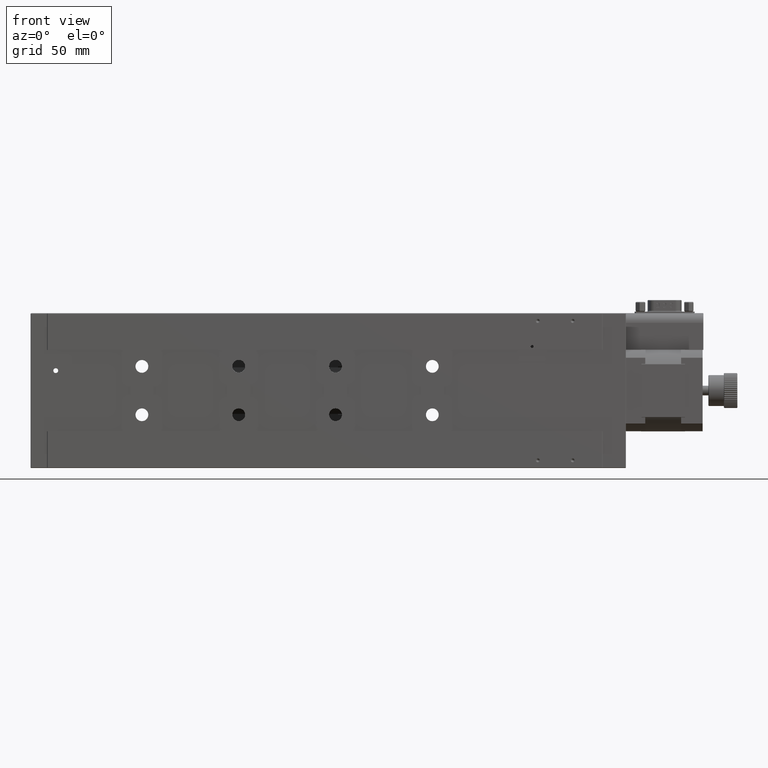
[diagram: clean part render]
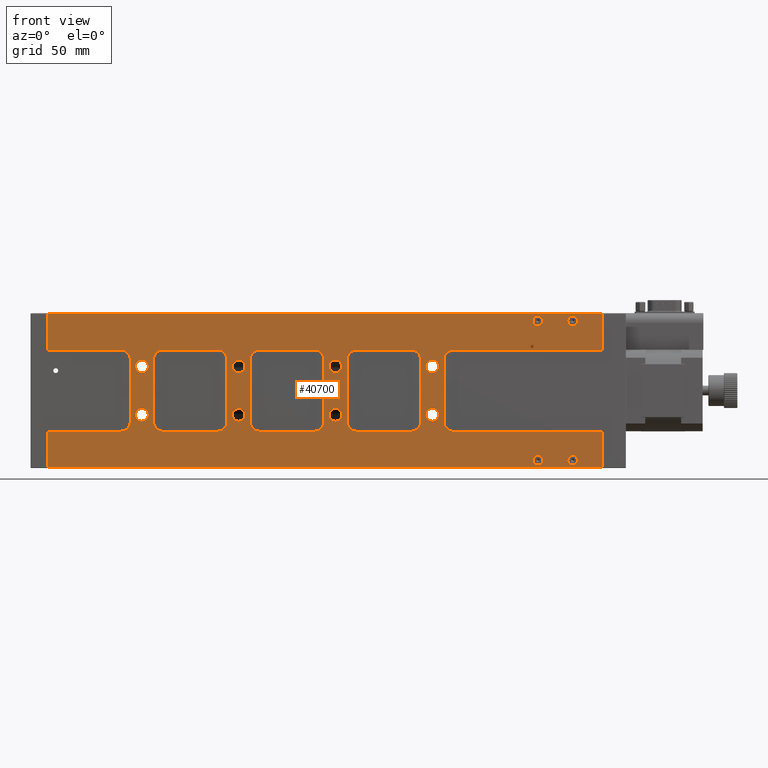
[diagram: same view with one face highlighted and labeled with its STEP entity id]
A machine part, front view. The second image highlights one B-rep face of the part: STEP entity #40700.
In plain terms, the highlighted planar face has unit normal (0, -1, 0).
Its self-contained STEP definition (entity closure, byte-faithful):
#84 = LINE ( 'NONE', #96950, #62316 ) ;
#296 = AXIS2_PLACEMENT_3D ( 'NONE', #114979, #136124, #92404 ) ;
#561 = DIRECTION ( 'NONE',  ( 0.0000000000000000000, -0.0000000000000000000, -1.000000000000000000 ) ) ;
#570 = CARTESIAN_POINT ( 'NONE',  ( 57.50000000000005000, 2.465190328815661900E-029, -30.79999999999999700 ) ) ;
#587 = DIRECTION ( 'NONE',  ( -0.0000000000000000000, 1.000000000000000000, -0.0000000000000000000 ) ) ;
#597 = VERTEX_POINT ( 'NONE', #49420 ) ;
#901 = DIRECTION ( 'NONE',  ( -0.0000000000000000000, -1.000000000000000000, -0.0000000000000000000 ) ) ;
#1114 = CARTESIAN_POINT ( 'NONE',  ( 259.0000000000000000, 2.465190328815661900E-029, -17.29999999999999700 ) ) ;
#1131 = CIRCLE ( 'NONE', #32607, 2.500000000000002200 ) ;
#1133 = CARTESIAN_POINT ( 'NONE',  ( 262.0000000000000000, 2.503708927703406600E-029, -1.500000000000015100 ) ) ;
#1218 = ORIENTED_EDGE ( 'NONE', *, *, #127760, .F. ) ;
#1389 = DIRECTION ( 'NONE',  ( 0.0000000000000000000, 0.0000000000000000000, -1.000000000000000000 ) ) ;
#1406 = CARTESIAN_POINT ( 'NONE',  ( 262.0000000000000000, 2.503708927703406600E-029, -4.000000000000003600 ) ) ;
#1866 = VERTEX_POINT ( 'NONE', #77046 ) ;
#1970 = EDGE_CURVE ( 'NONE', #51352, #121429, #70528, .T. ) ;
#2080 = VERTEX_POINT ( 'NONE', #48911 ) ;
#2211 = DIRECTION ( 'NONE',  ( 1.000000000000000000, 0.0000000000000000000, 0.0000000000000000000 ) ) ;
#2237 = VECTOR ( 'NONE', #115083, 1000.000000000000000 ) ;
#2761 = VERTEX_POINT ( 'NONE', #18773 ) ;
#3974 = DIRECTION ( 'NONE',  ( 0.0000000000000000000, -1.000000000000000000, 0.0000000000000000000 ) ) ;
#4167 = FACE_OUTER_BOUND ( 'NONE', #42042, .T. ) ;
#4202 = ORIENTED_EDGE ( 'NONE', *, *, #5622, .T. ) ;
#4478 = CIRCLE ( 'NONE', #66826, 3.299999999999997200 ) ;
#4493 = AXIS2_PLACEMENT_3D ( 'NONE', #136596, #25760, #114023 ) ;
#4707 = VERTEX_POINT ( 'NONE', #22942 ) ;
#4799 = CARTESIAN_POINT ( 'NONE',  ( 101.5000000000000600, 2.465190328815661900E-029, -23.99999999999999600 ) ) ;
#5057 = CIRCLE ( 'NONE', #89733, 4.999999999999997300 ) ;
#5211 = CIRCLE ( 'NONE', #73186, 2.500000000000002200 ) ;
#5622 = EDGE_CURVE ( 'NONE', #135397, #4707, #134677, .T. ) ;
#5801 = EDGE_LOOP ( 'NONE', ( #53796, #138934, #56399, #54696, #56809, #70394, #1218, #15175 ) ) ;
#6030 = AXIS2_PLACEMENT_3D ( 'NONE', #128756, #141249, #119610 ) ;
#6052 = ORIENTED_EDGE ( 'NONE', *, *, #15484, .F. ) ;
#6167 = LINE ( 'NONE', #29450, #113165 ) ;
#6775 = ORIENTED_EDGE ( 'NONE', *, *, #141233, .F. ) ;
#7283 = VERTEX_POINT ( 'NONE', #136190 ) ;
#7847 = CARTESIAN_POINT ( 'NONE',  ( 118.5000000000000600, 2.465190328815661900E-029, -56.00000000000002100 ) ) ;
#8048 = CARTESIAN_POINT ( 'NONE',  ( 107.5000000000000600, 2.465190328815661900E-029, -52.50000000000000700 ) ) ;
#8451 = VERTEX_POINT ( 'NONE', #44719 ) ;
#8688 = CARTESIAN_POINT ( 'NONE',  ( 295.2000000000000500, 2.465190328815661900E-029, -79.69999999999994600 ) ) ;
#9483 = CARTESIAN_POINT ( 'NONE',  ( 68.50000000000005700, 2.465190328815661900E-029, -19.00000000000000400 ) ) ;
#9649 = ORIENTED_EDGE ( 'NONE', *, *, #29708, .T. ) ;
#10480 = EDGE_CURVE ( 'NONE', #79643, #37473, #96171, .T. ) ;
#11616 = CARTESIAN_POINT ( 'NONE',  ( 213.5000000000000900, 2.465190328815661900E-029, -56.00000000000001400 ) ) ;
#11747 = CIRCLE ( 'NONE', #4493, 5.000000000000000900 ) ;
#11820 = CIRCLE ( 'NONE', #106686, 3.299999999999997200 ) ;
#11949 = AXIS2_PLACEMENT_3D ( 'NONE', #78133, #132955, #34606 ) ;
#12019 = DIRECTION ( 'NONE',  ( -1.665334536937735800E-014, 0.0000000000000000000, -1.000000000000000000 ) ) ;
#12058 = CIRCLE ( 'NONE', #96217, 3.299999999999997200 ) ;
#12349 = VECTOR ( 'NONE', #62794, 1000.000000000000000 ) ;
#12355 = EDGE_CURVE ( 'NONE', #1866, #130557, #134238, .T. ) ;
#12398 = AXIS2_PLACEMENT_3D ( 'NONE', #78737, #13514, #101375 ) ;
#12891 = FACE_BOUND ( 'NONE', #5801, .T. ) ;
#13514 = DIRECTION ( 'NONE',  ( -0.0000000000000000000, 1.000000000000000000, -0.0000000000000000000 ) ) ;
#13687 = CARTESIAN_POINT ( 'NONE',  ( 118.5000000000000600, 2.465190328815661900E-029, -61.00000000000002100 ) ) ;
#13686 = CARTESIAN_POINT ( 'NONE',  ( 207.5000000000000900, 2.465190328815661900E-029, -30.79999999999999700 ) ) ;
#13862 = DIRECTION ( 'NONE',  ( -1.000000000000000000, 0.0000000000000000000, 0.0000000000000000000 ) ) ;
#13868 = EDGE_CURVE ( 'NONE', #122162, #78743, #32973, .T. ) ;
#14012 = CARTESIAN_POINT ( 'NONE',  ( 163.5000000000000600, 2.465190328815661900E-029, -18.99999999999998200 ) ) ;
#14272 = EDGE_CURVE ( 'NONE', #32582, #65063, #5057, .T. ) ;
#14584 = CARTESIAN_POINT ( 'NONE',  ( 57.50000000000005000, 2.465190328815661900E-029, -24.20000000000000300 ) ) ;
#14671 = EDGE_CURVE ( 'NONE', #105512, #79790, #38374, .T. ) ;
#14877 = DIRECTION ( 'NONE',  ( 0.0000000000000000000, 0.0000000000000000000, 1.000000000000000000 ) ) ;
#15175 = ORIENTED_EDGE ( 'NONE', *, *, #142912, .T. ) ;
#15390 = EDGE_CURVE ( 'NONE', #26297, #118069, #62347, .T. ) ;
#15484 = EDGE_CURVE ( 'NONE', #32582, #131623, #44890, .T. ) ;
#16000 = LINE ( 'NONE', #49950, #76452 ) ;
#16180 = VERTEX_POINT ( 'NONE', #31472 ) ;
#16216 = CARTESIAN_POINT ( 'NONE',  ( 96.50000000000005700, 2.465190328815661900E-029, -61.00000000000002100 ) ) ;
#16485 = CARTESIAN_POINT ( 'NONE',  ( 63.50000000000005700, 2.465190328815661900E-029, -19.00000000000000400 ) ) ;
#16497 = LINE ( 'NONE', #99028, #140756 ) ;
#16971 = CARTESIAN_POINT ( 'NONE',  ( 168.5000000000000600, 2.465190328815661900E-029, -61.00000000000002100 ) ) ;
#17053 = VECTOR ( 'NONE', #90548, 1000.000000000000000 ) ;
#18243 = ORIENTED_EDGE ( 'NONE', *, *, #48437, .T. ) ;
#18369 = CARTESIAN_POINT ( 'NONE',  ( 168.5000000000000600, 2.465190328815661900E-029, -56.00000000000002100 ) ) ;
#18593 = AXIS2_PLACEMENT_3D ( 'NONE', #56600, #112494, #58048 ) ;
#18663 = DIRECTION ( 'NONE',  ( -0.0000000000000000000, 1.000000000000000000, -0.0000000000000000000 ) ) ;
#18773 = CARTESIAN_POINT ( 'NONE',  ( 157.5000000000000600, 2.465190328815661900E-029, -30.79999999999999700 ) ) ;
#18905 = DIRECTION ( 'NONE',  ( 0.0000000000000000000, 0.0000000000000000000, -1.000000000000000000 ) ) ;
#18970 = VERTEX_POINT ( 'NONE', #113538 ) ;
#19242 = EDGE_LOOP ( 'NONE', ( #113642, #51136 ) ) ;
#19856 = DIRECTION ( 'NONE',  ( 1.000000000000000000, 0.0000000000000000000, 0.0000000000000000000 ) ) ;
#20067 = VERTEX_POINT ( 'NONE', #92656 ) ;
#20417 = EDGE_CURVE ( 'NONE', #54818, #59353, #5211, .T. ) ;
#20668 = DIRECTION ( 'NONE',  ( -8.260587980841931400E-017, 0.0000000000000000000, 1.000000000000000000 ) ) ;
#20676 = LINE ( 'NONE', #61538, #124161 ) ;
#21606 = ORIENTED_EDGE ( 'NONE', *, *, #10480, .T. ) ;
#22066 = CARTESIAN_POINT ( 'NONE',  ( 218.5000000000000600, 2.465190328815661900E-029, -23.99999999999996800 ) ) ;
#22235 = CARTESIAN_POINT ( 'NONE',  ( 201.5000000000000600, 2.465190328815661900E-029, -56.00000000000002100 ) ) ;
#22796 = EDGE_CURVE ( 'NONE', #130638, #81582, #64917, .T. ) ;
#22942 = CARTESIAN_POINT ( 'NONE',  ( 157.5000000000000600, 2.465190328815661900E-029, -49.20000000000001000 ) ) ;
#23245 = DIRECTION ( 'NONE',  ( 1.000000000000000000, 0.0000000000000000000, -0.0000000000000000000 ) ) ;
#23598 = DIRECTION ( 'NONE',  ( 0.0000000000000000000, 0.0000000000000000000, -1.000000000000000000 ) ) ;
#23636 = ORIENTED_EDGE ( 'NONE', *, *, #46628, .T. ) ;
#23777 = DIRECTION ( 'NONE',  ( 0.0000000000000000000, 0.0000000000000000000, -1.000000000000000000 ) ) ;
#23821 = CARTESIAN_POINT ( 'NONE',  ( 107.5000000000000600, 2.465190328815661900E-029, -55.80000000000000400 ) ) ;
#23989 = AXIS2_PLACEMENT_3D ( 'NONE', #80199, #135494, #24147 ) ;
#24147 = DIRECTION ( 'NONE',  ( 0.0000000000000000000, 0.0000000000000000000, -1.000000000000000000 ) ) ;
#24508 = CARTESIAN_POINT ( 'NONE',  ( 51.50000000000004300, 2.465190328815661900E-029, -56.00000000000002100 ) ) ;
#24749 = DIRECTION ( 'NONE',  ( -0.0000000000000000000, 1.000000000000000000, -0.0000000000000000000 ) ) ;
#25760 = DIRECTION ( 'NONE',  ( -0.0000000000000000000, 1.000000000000000000, -0.0000000000000000000 ) ) ;
#25775 = CARTESIAN_POINT ( 'NONE',  ( 213.5000000000000600, 2.465190328815661900E-029, -23.99999999999996800 ) ) ;
#25892 = CARTESIAN_POINT ( 'NONE',  ( 295.2000000000000500, 2.465190328815661900E-029, -18.99999999999994700 ) ) ;
#26026 = CARTESIAN_POINT ( 'NONE',  ( 63.50000000000005700, 2.465190328815661900E-029, -56.00000000000002100 ) ) ;
#26297 = VERTEX_POINT ( 'NONE', #54406 ) ;
#26427 = EDGE_CURVE ( 'NONE', #4707, #135397, #12058, .T. ) ;
#26466 = CARTESIAN_POINT ( 'NONE',  ( 207.5000000000000900, 2.465190328815661900E-029, -52.50000000000000700 ) ) ;
#26540 = DIRECTION ( 'NONE',  ( -0.0000000000000000000, 1.000000000000000000, -0.0000000000000000000 ) ) ;
#26579 = CARTESIAN_POINT ( 'NONE',  ( 57.50000000000005000, 2.465190328815661900E-029, -55.80000000000000400 ) ) ;
#26808 = CARTESIAN_POINT ( 'NONE',  ( 113.5000000000000400, 2.465190328815661900E-029, -18.99999999999998900 ) ) ;
#26948 = EDGE_CURVE ( 'NONE', #8451, #60736, #104981, .T. ) ;
#26986 = CARTESIAN_POINT ( 'NONE',  ( 218.5000000000000600, 2.465190328815661900E-029, -61.00000000000002100 ) ) ;
#27320 = AXIS2_PLACEMENT_3D ( 'NONE', #84875, #18663, #85353 ) ;
#27321 = CARTESIAN_POINT ( 'NONE',  ( 8.800000000000086000, 2.465190328815661900E-029, -80.00000000000000000 ) ) ;
#27335 = DIRECTION ( 'NONE',  ( 0.0000000000000000000, 0.0000000000000000000, -1.000000000000000000 ) ) ;
#27779 = DIRECTION ( 'NONE',  ( -1.000000000000000000, -0.0000000000000000000, -2.420544385083917700E-016 ) ) ;
#28387 = AXIS2_PLACEMENT_3D ( 'NONE', #111431, #133064, #143217 ) ;
#28466 = VERTEX_POINT ( 'NONE', #1133 ) ;
#29385 = CARTESIAN_POINT ( 'NONE',  ( 46.50000000000004300, 2.465190328815661900E-029, -56.00000000000002100 ) ) ;
#29450 = CARTESIAN_POINT ( 'NONE',  ( 295.2000000000000500, 2.465190328815661900E-029, 0.0000000000000000000 ) ) ;
#29708 = EDGE_CURVE ( 'NONE', #105039, #2080, #125258, .T. ) ;
#29945 = EDGE_LOOP ( 'NONE', ( #48165, #23636 ) ) ;
#30076 = FACE_BOUND ( 'NONE', #109184, .T. ) ;
#30098 = EDGE_CURVE ( 'NONE', #7283, #60736, #43799, .T. ) ;
#30124 = ORIENTED_EDGE ( 'NONE', *, *, #42428, .T. ) ;
#30464 = CARTESIAN_POINT ( 'NONE',  ( 63.50000000000005700, 2.465190328815661900E-029, -24.00000000000000400 ) ) ;
#30717 = CARTESIAN_POINT ( 'NONE',  ( 8.500000000000063900, 2.465190328815661900E-029, -61.00000000000002100 ) ) ;
#31014 = VERTEX_POINT ( 'NONE', #4799 ) ;
#31386 = CARTESIAN_POINT ( 'NONE',  ( 262.0000000000000000, 2.503708927703406600E-029, -4.000000000000003600 ) ) ;
#31469 = ORIENTED_EDGE ( 'NONE', *, *, #22796, .T. ) ;
#31472 = CARTESIAN_POINT ( 'NONE',  ( 207.5000000000000900, 2.465190328815661900E-029, -24.20000000000000300 ) ) ;
#31475 = LINE ( 'NONE', #140900, #109102 ) ;
#31562 = AXIS2_PLACEMENT_3D ( 'NONE', #93216, #26540, #113859 ) ;
#31790 = CIRCLE ( 'NONE', #105145, 2.499999999999988500 ) ;
#31849 = CIRCLE ( 'NONE', #11949, 5.000000000000000900 ) ;
#31854 = FACE_BOUND ( 'NONE', #111481, .T. ) ;
#32228 = EDGE_CURVE ( 'NONE', #68909, #104421, #6167, .T. ) ;
#32345 = CARTESIAN_POINT ( 'NONE',  ( 107.5000000000000600, 2.465190328815661900E-029, -52.50000000000000700 ) ) ;
#32582 = VERTEX_POINT ( 'NONE', #24508 ) ;
#32607 = AXIS2_PLACEMENT_3D ( 'NONE', #112177, #34957, #80402 ) ;
#32973 = CIRCLE ( 'NONE', #125455, 4.999999999999997300 ) ;
#33428 = ORIENTED_EDGE ( 'NONE', *, *, #122243, .T. ) ;
#33846 = DIRECTION ( 'NONE',  ( 0.0000000000000000000, -1.000000000000000000, 0.0000000000000000000 ) ) ;
#34152 = CARTESIAN_POINT ( 'NONE',  ( 107.5000000000000600, 2.465190328815661900E-029, -49.20000000000001000 ) ) ;
#34606 = DIRECTION ( 'NONE',  ( 0.0000000000000000000, 0.0000000000000000000, -1.000000000000000000 ) ) ;
#34817 = AXIS2_PLACEMENT_3D ( 'NONE', #7847, #85132, #18905 ) ;
#34957 = DIRECTION ( 'NONE',  ( -0.0000000000000000000, -1.000000000000000000, -0.0000000000000000000 ) ) ;
#35570 = EDGE_CURVE ( 'NONE', #61717, #20067, #113654, .T. ) ;
#35836 = CARTESIAN_POINT ( 'NONE',  ( 207.5000000000000900, 2.465190328815661900E-029, -49.20000000000001000 ) ) ;
#35963 = VERTEX_POINT ( 'NONE', #30464 ) ;
#36358 = ORIENTED_EDGE ( 'NONE', *, *, #79208, .T. ) ;
#36893 = AXIS2_PLACEMENT_3D ( 'NONE', #49006, #70260, #58271 ) ;
#37325 = EDGE_CURVE ( 'NONE', #130803, #143166, #132080, .T. ) ;
#37473 = VERTEX_POINT ( 'NONE', #23821 ) ;
#37981 = EDGE_LOOP ( 'NONE', ( #123129, #4202 ) ) ;
#38207 = VERTEX_POINT ( 'NONE', #83097 ) ;
#38374 = LINE ( 'NONE', #46634, #83313 ) ;
#38400 = DIRECTION ( 'NONE',  ( -1.000000000000000000, -0.0000000000000000000, -1.826024711554533400E-016 ) ) ;
#38434 = CARTESIAN_POINT ( 'NONE',  ( 8.800000000000086000, 2.465190328815661900E-029, -0.3000000000000502300 ) ) ;
#38647 = CIRCLE ( 'NONE', #125210, 5.000000000000000900 ) ;
#38810 = DIRECTION ( 'NONE',  ( 0.0000000000000000000, 0.0000000000000000000, -1.000000000000000000 ) ) ;
#38825 = FACE_BOUND ( 'NONE', #19242, .T. ) ;
#38921 = CARTESIAN_POINT ( 'NONE',  ( 262.0000000000000000, 2.503708927703406600E-029, -76.00000000000000000 ) ) ;
#39352 = VERTEX_POINT ( 'NONE', #11616 ) ;
#39507 = DIRECTION ( 'NONE',  ( 0.0000000000000000000, 0.0000000000000000000, -1.000000000000000000 ) ) ;
#39615 = ORIENTED_EDGE ( 'NONE', *, *, #120348, .T. ) ;
#39793 = VECTOR ( 'NONE', #76104, 1000.000000000000000 ) ;
#40099 = DIRECTION ( 'NONE',  ( 0.0000000000000000000, 0.0000000000000000000, -1.000000000000000000 ) ) ;
#40325 = CARTESIAN_POINT ( 'NONE',  ( 51.50000000000004300, 2.465190328815661900E-029, -19.00000000000000700 ) ) ;
#40542 = EDGE_CURVE ( 'NONE', #70006, #121429, #87353, .T. ) ;
#40700 = ADVANCED_FACE ( 'NONE', ( #4167, #12891, #69819, #94115, #116515, #138799, #128463, #126776, #59466, #30076, #43913, #124956, #64671, #68141, #42264, #38825, #31854 ), #75472, .T. ) ;
#41088 = VERTEX_POINT ( 'NONE', #94505 ) ;
#41144 = CIRCLE ( 'NONE', #67466, 3.299999999999997200 ) ;
#41603 = CIRCLE ( 'NONE', #12398, 5.000000000000000900 ) ;
#41651 = ORIENTED_EDGE ( 'NONE', *, *, #136097, .T. ) ;
#41684 = CIRCLE ( 'NONE', #121235, 3.299999999999997200 ) ;
#42003 = ORIENTED_EDGE ( 'NONE', *, *, #112741, .T. ) ;
#42040 = CIRCLE ( 'NONE', #23989, 5.000000000000000900 ) ;
#42042 = EDGE_LOOP ( 'NONE', ( #131695, #116535, #73343, #113640, #100221, #61463, #48335, #78984, #30124, #18243, #85070, #33428, #6052, #42720, #51808, #130037 ) ) ;
#42264 = FACE_BOUND ( 'NONE', #59793, .T. ) ;
#42428 = EDGE_CURVE ( 'NONE', #104421, #114025, #90737, .T. ) ;
#42489 = DIRECTION ( 'NONE',  ( -0.0000000000000000000, -1.000000000000000000, -0.0000000000000000000 ) ) ;
#42578 = AXIS2_PLACEMENT_3D ( 'NONE', #18369, #127847, #40099 ) ;
#42720 = ORIENTED_EDGE ( 'NONE', *, *, #14272, .T. ) ;
#43330 = EDGE_CURVE ( 'NONE', #50167, #51352, #16497, .T. ) ;
#43443 = DIRECTION ( 'NONE',  ( 0.0000000000000000000, 0.0000000000000000000, 1.000000000000000000 ) ) ;
#43447 = CARTESIAN_POINT ( 'NONE',  ( 207.5000000000000900, 2.465190328815661900E-029, -27.50000000000000000 ) ) ;
#43535 = VERTEX_POINT ( 'NONE', #26579 ) ;
#43799 = LINE ( 'NONE', #26808, #105976 ) ;
#43913 = FACE_BOUND ( 'NONE', #29945, .T. ) ;
#44273 = EDGE_CURVE ( 'NONE', #130638, #2080, #31475, .T. ) ;
#44719 = CARTESIAN_POINT ( 'NONE',  ( 113.5000000000000400, 2.465190328815661900E-029, -23.99999999999998900 ) ) ;
#44819 = AXIS2_PLACEMENT_3D ( 'NONE', #73554, #116976, #126999 ) ;
#44873 = EDGE_CURVE ( 'NONE', #77548, #65063, #105879, .T. ) ;
#44890 = LINE ( 'NONE', #40325, #39793 ) ;
#45191 = LINE ( 'NONE', #14012, #124559 ) ;
#45381 = CARTESIAN_POINT ( 'NONE',  ( 201.5000000000000600, 2.465190328815661900E-029, -23.99999999999997200 ) ) ;
#45460 = CARTESIAN_POINT ( 'NONE',  ( 57.50000000000005000, 2.465190328815661900E-029, -52.50000000000000700 ) ) ;
#45461 = ORIENTED_EDGE ( 'NONE', *, *, #57017, .T. ) ;
#45527 = EDGE_CURVE ( 'NONE', #43535, #38207, #41684, .T. ) ;
#45530 = DIRECTION ( 'NONE',  ( -0.0000000000000000000, 1.000000000000000000, -0.0000000000000000000 ) ) ;
#45742 = AXIS2_PLACEMENT_3D ( 'NONE', #63371, #60498, #107745 ) ;
#46067 = AXIS2_PLACEMENT_3D ( 'NONE', #87210, #75604, #86753 ) ;
#46206 = ORIENTED_EDGE ( 'NONE', *, *, #44273, .F. ) ;
#46522 = CIRCLE ( 'NONE', #129621, 5.000000000000000900 ) ;
#46628 = EDGE_CURVE ( 'NONE', #143166, #130803, #109438, .T. ) ;
#46634 = CARTESIAN_POINT ( 'NONE',  ( 63.50000000000005700, 2.465190328815661900E-029, -61.00000000000002100 ) ) ;
#46985 = EDGE_CURVE ( 'NONE', #90993, #71943, #38647, .T. ) ;
#47106 = CARTESIAN_POINT ( 'NONE',  ( 8.800000000000086000, 2.465190328815661900E-029, -19.00000000000001800 ) ) ;
#48105 = DIRECTION ( 'NONE',  ( -0.0000000000000000000, -1.000000000000000000, -0.0000000000000000000 ) ) ;
#48107 = CARTESIAN_POINT ( 'NONE',  ( 295.2000000000000500, 2.465190328815661900E-029, -0.3000000000000502300 ) ) ;
#48165 = ORIENTED_EDGE ( 'NONE', *, *, #37325, .T. ) ;
#48335 = ORIENTED_EDGE ( 'NONE', *, *, #56789, .F. ) ;
#48397 = DIRECTION ( 'NONE',  ( 0.0000000000000000000, 0.0000000000000000000, 1.000000000000000000 ) ) ;
#48437 = EDGE_CURVE ( 'NONE', #114025, #83189, #16000, .T. ) ;
#48911 = CARTESIAN_POINT ( 'NONE',  ( 146.5000000000000900, 2.465190328815661900E-029, -61.00000000000002100 ) ) ;
#49006 = CARTESIAN_POINT ( 'NONE',  ( 280.0000000000000000, 2.503708927703406600E-029, -76.00000000000000000 ) ) ;
#49409 = CARTESIAN_POINT ( 'NONE',  ( 113.5000000000000400, 2.465190328815661900E-029, -18.99999999999998900 ) ) ;
#49420 = CARTESIAN_POINT ( 'NONE',  ( 96.50000000000005700, 2.465190328815661900E-029, -18.99999999999999600 ) ) ;
#49826 = CARTESIAN_POINT ( 'NONE',  ( 107.5000000000000600, 2.465190328815661900E-029, -24.20000000000000300 ) ) ;
#49950 = CARTESIAN_POINT ( 'NONE',  ( 8.800000000000086000, 2.465190328815661900E-029, -19.00000000000001800 ) ) ;
#50167 = VERTEX_POINT ( 'NONE', #50936 ) ;
#50476 = CARTESIAN_POINT ( 'NONE',  ( 280.0000000000000000, 2.503708927703406600E-029, -78.50000000000000000 ) ) ;
#50936 = CARTESIAN_POINT ( 'NONE',  ( 8.800000000000086000, 2.465190328815661900E-029, -79.69999999999994600 ) ) ;
#51136 = ORIENTED_EDGE ( 'NONE', *, *, #15390, .F. ) ;
#51352 = VERTEX_POINT ( 'NONE', #8688 ) ;
#51393 = CARTESIAN_POINT ( 'NONE',  ( 168.5000000000000300, 2.465190328815661900E-029, -23.99999999999997900 ) ) ;
#51808 = ORIENTED_EDGE ( 'NONE', *, *, #44873, .F. ) ;
#52785 = DIRECTION ( 'NONE',  ( -0.0000000000000000000, 1.000000000000000000, -0.0000000000000000000 ) ) ;
#53045 = VERTEX_POINT ( 'NONE', #58089 ) ;
#53206 = VECTOR ( 'NONE', #136551, 1000.000000000000000 ) ;
#53796 = ORIENTED_EDGE ( 'NONE', *, *, #12355, .F. ) ;
#53858 = DIRECTION ( 'NONE',  ( -0.0000000000000000000, 1.000000000000000000, -0.0000000000000000000 ) ) ;
#54406 = CARTESIAN_POINT ( 'NONE',  ( 262.0000000000000000, 2.503708927703406600E-029, -73.50000000000001400 ) ) ;
#54696 = ORIENTED_EDGE ( 'NONE', *, *, #13868, .T. ) ;
#54710 = ORIENTED_EDGE ( 'NONE', *, *, #64121, .F. ) ;
#54818 = VERTEX_POINT ( 'NONE', #66276 ) ;
#55117 = DIRECTION ( 'NONE',  ( 0.0000000000000000000, 0.0000000000000000000, 1.000000000000000000 ) ) ;
#55218 = DIRECTION ( 'NONE',  ( 0.0000000000000000000, 0.0000000000000000000, 1.000000000000000000 ) ) ;
#55624 = DIRECTION ( 'NONE',  ( 0.0000000000000000000, 0.0000000000000000000, 1.000000000000000000 ) ) ;
#56136 = DIRECTION ( 'NONE',  ( -0.0000000000000000000, 1.000000000000000000, -0.0000000000000000000 ) ) ;
#56299 = ORIENTED_EDGE ( 'NONE', *, *, #140973, .F. ) ;
#56399 = ORIENTED_EDGE ( 'NONE', *, *, #57416, .F. ) ;
#56600 = CARTESIAN_POINT ( 'NONE',  ( 118.5000000000000600, 2.465190328815661900E-029, -23.99999999999998900 ) ) ;
#56789 = EDGE_CURVE ( 'NONE', #68909, #71943, #100735, .T. ) ;
#56809 = ORIENTED_EDGE ( 'NONE', *, *, #108924, .F. ) ;
#57017 = EDGE_CURVE ( 'NONE', #38207, #43535, #122963, .T. ) ;
#57416 = EDGE_CURVE ( 'NONE', #122162, #133656, #102137, .T. ) ;
#57946 = VECTOR ( 'NONE', #138099, 1000.000000000000000 ) ;
#58048 = DIRECTION ( 'NONE',  ( 0.0000000000000000000, 0.0000000000000000000, -1.000000000000000000 ) ) ;
#58089 = CARTESIAN_POINT ( 'NONE',  ( 151.5000000000000600, 2.465190328815661900E-029, -23.99999999999998200 ) ) ;
#58223 = CARTESIAN_POINT ( 'NONE',  ( 207.5000000000000900, 2.465190328815661900E-029, -55.80000000000000400 ) ) ;
#58271 = DIRECTION ( 'NONE',  ( 0.0000000000000000000, 0.0000000000000000000, -1.000000000000000000 ) ) ;
#58506 = DIRECTION ( 'NONE',  ( 1.239088197126289600E-016, 0.0000000000000000000, -1.000000000000000000 ) ) ;
#58892 = ORIENTED_EDGE ( 'NONE', *, *, #135196, .F. ) ;
#59253 = CARTESIAN_POINT ( 'NONE',  ( 8.500000000000063900, 2.465190328815661900E-029, -0.3000000000000502300 ) ) ;
#59256 = CIRCLE ( 'NONE', #296, 4.999999999999997300 ) ;
#59321 = CIRCLE ( 'NONE', #71587, 2.500000000000002200 ) ;
#59352 = CARTESIAN_POINT ( 'NONE',  ( 46.50000000000004300, 2.465190328815661900E-029, -19.00000000000000700 ) ) ;
#59353 = VERTEX_POINT ( 'NONE', #50476 ) ;
#59466 = FACE_BOUND ( 'NONE', #95171, .T. ) ;
#59793 = EDGE_LOOP ( 'NONE', ( #54710, #118657 ) ) ;
#59804 = DIRECTION ( 'NONE',  ( -1.000000000000000000, -0.0000000000000000000, -1.826024711554533900E-016 ) ) ;
#60386 = EDGE_CURVE ( 'NONE', #597, #134908, #99155, .T. ) ;
#60498 = DIRECTION ( 'NONE',  ( -0.0000000000000000000, -1.000000000000000000, -0.0000000000000000000 ) ) ;
#60736 = VERTEX_POINT ( 'NONE', #64526 ) ;
#60742 = CARTESIAN_POINT ( 'NONE',  ( 101.5000000000000600, 2.465190328815661900E-029, -56.00000000000001400 ) ) ;
#60854 = CARTESIAN_POINT ( 'NONE',  ( 157.5000000000000600, 2.465190328815661900E-029, -27.50000000000000000 ) ) ;
#61000 = CARTESIAN_POINT ( 'NONE',  ( 213.5000000000000900, 2.465190328815661900E-029, -61.00000000000002100 ) ) ;
#61235 = DIRECTION ( 'NONE',  ( -0.0000000000000000000, 1.000000000000000000, -0.0000000000000000000 ) ) ;
#61463 = ORIENTED_EDGE ( 'NONE', *, *, #46985, .T. ) ;
#61538 = CARTESIAN_POINT ( 'NONE',  ( 8.500000000000063900, 2.465190328815661900E-029, -19.00000000000001800 ) ) ;
#61717 = VERTEX_POINT ( 'NONE', #90112 ) ;
#62257 = EDGE_LOOP ( 'NONE', ( #108550, #108569 ) ) ;
#62288 = CARTESIAN_POINT ( 'NONE',  ( 201.5000000000000600, 2.465190328815661900E-029, -18.99999999999997200 ) ) ;
#62316 = VECTOR ( 'NONE', #20668, 1000.000000000000000 ) ;
#62347 = CIRCLE ( 'NONE', #107353, 2.499999999999988500 ) ;
#62654 = DIRECTION ( 'NONE',  ( 0.0000000000000000000, 0.0000000000000000000, -1.000000000000000000 ) ) ;
#62794 = DIRECTION ( 'NONE',  ( 0.0000000000000000000, -0.0000000000000000000, -1.000000000000000000 ) ) ;
#63318 = EDGE_CURVE ( 'NONE', #1866, #133656, #91359, .T. ) ;
#63371 = CARTESIAN_POINT ( 'NONE',  ( 262.0000000000000000, 2.503708927703406600E-029, -76.00000000000000000 ) ) ;
#64016 = VECTOR ( 'NONE', #129278, 1000.000000000000000 ) ;
#64121 = EDGE_CURVE ( 'NONE', #141808, #41088, #1131, .T. ) ;
#64526 = CARTESIAN_POINT ( 'NONE',  ( 118.5000000000000600, 2.465190328815661900E-029, -18.99999999999998900 ) ) ;
#64671 = FACE_BOUND ( 'NONE', #81629, .T. ) ;
#64783 = CARTESIAN_POINT ( 'NONE',  ( 152.0000000000000300, 2.465190328815661900E-029, -40.00000000000000000 ) ) ;
#64891 = CARTESIAN_POINT ( 'NONE',  ( 168.5000000000000300, 2.465190328815661900E-029, -18.99999999999998200 ) ) ;
#64917 = CIRCLE ( 'NONE', #34817, 4.999999999999997300 ) ;
#64944 = CIRCLE ( 'NONE', #87225, 3.299999999999997200 ) ;
#65063 = VERTEX_POINT ( 'NONE', #122027 ) ;
#65142 = ORIENTED_EDGE ( 'NONE', *, *, #114838, .T. ) ;
#65349 = VERTEX_POINT ( 'NONE', #128171 ) ;
#65896 = CIRCLE ( 'NONE', #126643, 2.499999999999988500 ) ;
#66146 = EDGE_CURVE ( 'NONE', #28466, #81619, #31790, .T. ) ;
#66276 = CARTESIAN_POINT ( 'NONE',  ( 280.0000000000000000, 2.503708927703406600E-029, -73.50000000000000000 ) ) ;
#66826 = AXIS2_PLACEMENT_3D ( 'NONE', #26466, #81103, #14877 ) ;
#66935 = DIRECTION ( 'NONE',  ( 0.0000000000000000000, 0.0000000000000000000, -1.000000000000000000 ) ) ;
#67247 = EDGE_LOOP ( 'NONE', ( #21606, #117861 ) ) ;
#67466 = AXIS2_PLACEMENT_3D ( 'NONE', #118859, #52785, #129885 ) ;
#67486 = DIRECTION ( 'NONE',  ( -0.0000000000000000000, 1.000000000000000000, -0.0000000000000000000 ) ) ;
#67604 = LINE ( 'NONE', #16485, #12349 ) ;
#67693 = CARTESIAN_POINT ( 'NONE',  ( 196.5000000000000600, 2.465190328815661900E-029, -56.00000000000002100 ) ) ;
#67922 = VERTEX_POINT ( 'NONE', #59352 ) ;
#68141 = FACE_BOUND ( 'NONE', #133446, .T. ) ;
#68433 = ORIENTED_EDGE ( 'NONE', *, *, #110438, .T. ) ;
#68693 = DIRECTION ( 'NONE',  ( 0.0000000000000000000, 0.0000000000000000000, -1.000000000000000000 ) ) ;
#68833 = DIRECTION ( 'NONE',  ( -0.0000000000000000000, 1.000000000000000000, -0.0000000000000000000 ) ) ;
#68909 = VERTEX_POINT ( 'NONE', #25892 ) ;
#69819 = FACE_BOUND ( 'NONE', #125644, .T. ) ;
#70006 = VERTEX_POINT ( 'NONE', #26986 ) ;
#70179 = DIRECTION ( 'NONE',  ( 1.652117596168386500E-016, -0.0000000000000000000, -1.000000000000000000 ) ) ;
#70260 = DIRECTION ( 'NONE',  ( -0.0000000000000000000, -1.000000000000000000, -0.0000000000000000000 ) ) ;
#70394 = ORIENTED_EDGE ( 'NONE', *, *, #93669, .T. ) ;
#70528 = LINE ( 'NONE', #79901, #17053 ) ;
#70904 = CIRCLE ( 'NONE', #6030, 3.299999999999997200 ) ;
#71587 = AXIS2_PLACEMENT_3D ( 'NONE', #138080, #104907, #38810 ) ;
#71630 = CIRCLE ( 'NONE', #107195, 0.7507161552948449200 ) ;
#71943 = VERTEX_POINT ( 'NONE', #83262 ) ;
#72477 = DIRECTION ( 'NONE',  ( -0.0000000000000000000, 1.000000000000000000, -0.0000000000000000000 ) ) ;
#73007 = CARTESIAN_POINT ( 'NONE',  ( 151.5000000000000600, 2.465190328815661900E-029, -56.00000000000001400 ) ) ;
#73186 = AXIS2_PLACEMENT_3D ( 'NONE', #106048, #137305, #39507 ) ;
#73191 = CARTESIAN_POINT ( 'NONE',  ( 262.0000000000000000, 2.503708927703406600E-029, -6.499999999999992000 ) ) ;
#73343 = ORIENTED_EDGE ( 'NONE', *, *, #40542, .F. ) ;
#73554 = CARTESIAN_POINT ( 'NONE',  ( 68.50000000000005700, 2.465190328815661900E-029, -56.00000000000002100 ) ) ;
#73668 = ORIENTED_EDGE ( 'NONE', *, *, #77559, .T. ) ;
#73924 = EDGE_CURVE ( 'NONE', #105512, #105458, #109702, .T. ) ;
#75303 = CIRCLE ( 'NONE', #139943, 3.299999999999997200 ) ;
#75472 = PLANE ( 'NONE',  #116498 ) ;
#75604 = DIRECTION ( 'NONE',  ( 0.0000000000000000000, -1.000000000000000000, 0.0000000000000000000 ) ) ;
#75829 = DIRECTION ( 'NONE',  ( -0.0000000000000000000, 1.000000000000000000, -0.0000000000000000000 ) ) ;
#76104 = DIRECTION ( 'NONE',  ( -0.0000000000000000000, 0.0000000000000000000, 1.000000000000000000 ) ) ;
#76452 = VECTOR ( 'NONE', #105442, 1000.000000000000000 ) ;
#77046 = CARTESIAN_POINT ( 'NONE',  ( 196.5000000000000600, 2.465190328815661900E-029, -18.99999999999997200 ) ) ;
#77548 = VERTEX_POINT ( 'NONE', #112030 ) ;
#77559 = EDGE_CURVE ( 'NONE', #2761, #65349, #115723, .T. ) ;
#77974 = EDGE_CURVE ( 'NONE', #70006, #39352, #134257, .T. ) ;
#78133 = CARTESIAN_POINT ( 'NONE',  ( 146.5000000000000600, 2.465190328815661900E-029, -23.99999999999998200 ) ) ;
#78182 = EDGE_CURVE ( 'NONE', #18970, #140918, #104769, .T. ) ;
#78737 = CARTESIAN_POINT ( 'NONE',  ( 46.50000000000004300, 2.465190328815661900E-029, -24.00000000000000700 ) ) ;
#78743 = VERTEX_POINT ( 'NONE', #121489 ) ;
#78941 = CARTESIAN_POINT ( 'NONE',  ( 213.5000000000000600, 2.465190328815661900E-029, -18.99999999999996800 ) ) ;
#78984 = ORIENTED_EDGE ( 'NONE', *, *, #32228, .T. ) ;
#79208 = EDGE_CURVE ( 'NONE', #65349, #2761, #97311, .T. ) ;
#79643 = VERTEX_POINT ( 'NONE', #34152 ) ;
#79790 = VERTEX_POINT ( 'NONE', #16216 ) ;
#79901 = CARTESIAN_POINT ( 'NONE',  ( 295.2000000000000500, 2.465190328815661900E-029, -61.00000000000002100 ) ) ;
#80199 = CARTESIAN_POINT ( 'NONE',  ( 96.50000000000005700, 2.465190328815661900E-029, -23.99999999999999600 ) ) ;
#80402 = DIRECTION ( 'NONE',  ( 0.0000000000000000000, 0.0000000000000000000, -1.000000000000000000 ) ) ;
#80444 = CARTESIAN_POINT ( 'NONE',  ( 157.5000000000000600, 2.465190328815661900E-029, -52.50000000000000700 ) ) ;
#80806 = ORIENTED_EDGE ( 'NONE', *, *, #114413, .F. ) ;
#80842 = AXIS2_PLACEMENT_3D ( 'NONE', #111116, #45530, #55218 ) ;
#81103 = DIRECTION ( 'NONE',  ( -0.0000000000000000000, 1.000000000000000000, -0.0000000000000000000 ) ) ;
#81212 = VECTOR ( 'NONE', #114108, 1000.000000000000000 ) ;
#81582 = VERTEX_POINT ( 'NONE', #126641 ) ;
#81619 = VERTEX_POINT ( 'NONE', #73191 ) ;
#81629 = EDGE_LOOP ( 'NONE', ( #65142, #95011 ) ) ;
#82605 = LINE ( 'NONE', #124537, #53206 ) ;
#82662 = VECTOR ( 'NONE', #112139, 1000.000000000000000 ) ;
#83097 = CARTESIAN_POINT ( 'NONE',  ( 57.50000000000005000, 2.465190328815661900E-029, -49.20000000000001000 ) ) ;
#83189 = VERTEX_POINT ( 'NONE', #47106 ) ;
#83262 = CARTESIAN_POINT ( 'NONE',  ( 218.5000000000000600, 2.465190328815661900E-029, -18.99999999999996800 ) ) ;
#83301 = DIRECTION ( 'NONE',  ( -0.0000000000000000000, 1.000000000000000000, -0.0000000000000000000 ) ) ;
#83313 = VECTOR ( 'NONE', #2211, 1000.000000000000000 ) ;
#84033 = CARTESIAN_POINT ( 'NONE',  ( 163.5000000000000600, 2.465190328815661900E-029, -23.99999999999997900 ) ) ;
#84087 = EDGE_LOOP ( 'NONE', ( #138479, #99538 ) ) ;
#84094 = AXIS2_PLACEMENT_3D ( 'NONE', #45460, #587, #55624 ) ;
#84555 = DIRECTION ( 'NONE',  ( 0.0000000000000000000, 0.0000000000000000000, 1.000000000000000000 ) ) ;
#84875 = CARTESIAN_POINT ( 'NONE',  ( 107.5000000000000600, 2.465190328815661900E-029, -27.50000000000000000 ) ) ;
#85070 = ORIENTED_EDGE ( 'NONE', *, *, #141467, .F. ) ;
#85132 = DIRECTION ( 'NONE',  ( -0.0000000000000000000, 1.000000000000000000, -0.0000000000000000000 ) ) ;
#85353 = DIRECTION ( 'NONE',  ( 0.0000000000000000000, 0.0000000000000000000, 1.000000000000000000 ) ) ;
#85365 = EDGE_CURVE ( 'NONE', #20067, #61717, #71630, .T. ) ;
#85445 = VERTEX_POINT ( 'NONE', #35836 ) ;
#86753 = DIRECTION ( 'NONE',  ( 0.0000000000000000000, 0.0000000000000000000, -1.000000000000000000 ) ) ;
#87210 = CARTESIAN_POINT ( 'NONE',  ( 259.0000000000000000, 2.465190328815661900E-029, -17.29999999999999700 ) ) ;
#87225 = AXIS2_PLACEMENT_3D ( 'NONE', #43447, #132117, #120641 ) ;
#87353 = LINE ( 'NONE', #61000, #57946 ) ;
#88149 = LINE ( 'NONE', #114575, #81212 ) ;
#88659 = EDGE_LOOP ( 'NONE', ( #140561, #39615, #80806, #108880, #91869, #92670, #56299, #42003 ) ) ;
#89159 = CIRCLE ( 'NONE', #45742, 2.499999999999988500 ) ;
#89733 = AXIS2_PLACEMENT_3D ( 'NONE', #29385, #61235, #62654 ) ;
#90112 = CARTESIAN_POINT ( 'NONE',  ( 259.0000000000000000, 2.465190328815661900E-029, -18.05071615529484000 ) ) ;
#90548 = DIRECTION ( 'NONE',  ( 0.0000000000000000000, 0.0000000000000000000, 1.000000000000000000 ) ) ;
#90609 = EDGE_CURVE ( 'NONE', #37473, #79643, #75303, .T. ) ;
#90737 = LINE ( 'NONE', #59253, #111358 ) ;
#90993 = VERTEX_POINT ( 'NONE', #25775 ) ;
#91359 = CIRCLE ( 'NONE', #31562, 5.000000000000000900 ) ;
#91869 = ORIENTED_EDGE ( 'NONE', *, *, #14671, .F. ) ;
#92325 = VERTEX_POINT ( 'NONE', #60742 ) ;
#92404 = DIRECTION ( 'NONE',  ( 0.0000000000000000000, 0.0000000000000000000, -1.000000000000000000 ) ) ;
#92656 = CARTESIAN_POINT ( 'NONE',  ( 259.0000000000000000, 2.465190328815661900E-029, -16.54928384470515100 ) ) ;
#92670 = ORIENTED_EDGE ( 'NONE', *, *, #73924, .T. ) ;
#92785 = CARTESIAN_POINT ( 'NONE',  ( 163.5000000000000600, 2.465190328815661900E-029, -61.00000000000002100 ) ) ;
#92922 = AXIS2_PLACEMENT_3D ( 'NONE', #122468, #67486, #1389 ) ;
#93216 = CARTESIAN_POINT ( 'NONE',  ( 196.5000000000000600, 2.465190328815661900E-029, -23.99999999999997200 ) ) ;
#93669 = EDGE_CURVE ( 'NONE', #114568, #118265, #105856, .T. ) ;
#93793 = CARTESIAN_POINT ( 'NONE',  ( 163.5000000000000600, 2.465190328815661900E-029, -56.00000000000001400 ) ) ;
#94115 = FACE_BOUND ( 'NONE', #88659, .T. ) ;
#94158 = AXIS2_PLACEMENT_3D ( 'NONE', #111367, #134420, #12019 ) ;
#94505 = CARTESIAN_POINT ( 'NONE',  ( 280.0000000000000000, 2.503708927703406600E-029, -1.500000000000001300 ) ) ;
#95011 = ORIENTED_EDGE ( 'NONE', *, *, #128109, .T. ) ;
#95171 = EDGE_LOOP ( 'NONE', ( #36358, #73668 ) ) ;
#95726 = ORIENTED_EDGE ( 'NONE', *, *, #98588, .F. ) ;
#96171 = CIRCLE ( 'NONE', #126499, 3.299999999999997200 ) ;
#96217 = AXIS2_PLACEMENT_3D ( 'NONE', #80444, #68833, #114587 ) ;
#96383 = ORIENTED_EDGE ( 'NONE', *, *, #30098, .F. ) ;
#96725 = CARTESIAN_POINT ( 'NONE',  ( 262.0000000000000000, 2.503708927703406600E-029, -78.49999999999998600 ) ) ;
#96950 = CARTESIAN_POINT ( 'NONE',  ( 151.5000000000000600, 2.465190328815661900E-029, -18.99999999999998200 ) ) ;
#97311 = CIRCLE ( 'NONE', #28387, 3.299999999999997200 ) ;
#98089 = CARTESIAN_POINT ( 'NONE',  ( 57.50000000000005000, 2.465190328815661900E-029, -52.50000000000000700 ) ) ;
#98458 = CARTESIAN_POINT ( 'NONE',  ( 157.5000000000000600, 2.465190328815661900E-029, -52.50000000000000700 ) ) ;
#98588 = EDGE_CURVE ( 'NONE', #81619, #28466, #65896, .T. ) ;
#99028 = CARTESIAN_POINT ( 'NONE',  ( 295.5000000000000600, 2.465190328815661900E-029, -79.69999999999994600 ) ) ;
#99155 = LINE ( 'NONE', #125793, #118141 ) ;
#99402 = DIRECTION ( 'NONE',  ( 0.0000000000000000000, 0.0000000000000000000, -1.000000000000000000 ) ) ;
#99538 = ORIENTED_EDGE ( 'NONE', *, *, #78182, .T. ) ;
#100221 = ORIENTED_EDGE ( 'NONE', *, *, #117822, .F. ) ;
#100349 = EDGE_CURVE ( 'NONE', #118069, #26297, #89159, .T. ) ;
#100735 = LINE ( 'NONE', #78941, #2237 ) ;
#101075 = CARTESIAN_POINT ( 'NONE',  ( 163.5000000000000600, 2.465190328815661900E-029, -18.99999999999998200 ) ) ;
#101375 = DIRECTION ( 'NONE',  ( 0.0000000000000000000, 0.0000000000000000000, -1.000000000000000000 ) ) ;
#102137 = LINE ( 'NONE', #62288, #64016 ) ;
#103703 = LINE ( 'NONE', #27321, #132922 ) ;
#104421 = VERTEX_POINT ( 'NONE', #48107 ) ;
#104460 = DIRECTION ( 'NONE',  ( 0.0000000000000000000, 0.0000000000000000000, -1.000000000000000000 ) ) ;
#104513 = DIRECTION ( 'NONE',  ( 0.0000000000000000000, 0.0000000000000000000, -1.000000000000000000 ) ) ;
#104769 = CIRCLE ( 'NONE', #27320, 3.299999999999997200 ) ;
#104794 = CARTESIAN_POINT ( 'NONE',  ( 57.50000000000005000, 2.465190328815661900E-029, -27.50000000000000000 ) ) ;
#104907 = DIRECTION ( 'NONE',  ( -0.0000000000000000000, -1.000000000000000000, -0.0000000000000000000 ) ) ;
#104981 = CIRCLE ( 'NONE', #18593, 5.000000000000000900 ) ;
#105039 = VERTEX_POINT ( 'NONE', #73007 ) ;
#105145 = AXIS2_PLACEMENT_3D ( 'NONE', #31386, #42489, #99402 ) ;
#105442 = DIRECTION ( 'NONE',  ( 0.0000000000000000000, 0.0000000000000000000, -1.000000000000000000 ) ) ;
#105458 = VERTEX_POINT ( 'NONE', #26026 ) ;
#105512 = VERTEX_POINT ( 'NONE', #135943 ) ;
#105856 = CIRCLE ( 'NONE', #42578, 4.999999999999997300 ) ;
#105879 = LINE ( 'NONE', #30717, #124752 ) ;
#105976 = VECTOR ( 'NONE', #38400, 1000.000000000000000 ) ;
#106048 = CARTESIAN_POINT ( 'NONE',  ( 280.0000000000000000, 2.503708927703406600E-029, -76.00000000000000000 ) ) ;
#106656 = VECTOR ( 'NONE', #70179, 1000.000000000000000 ) ;
#106686 = AXIS2_PLACEMENT_3D ( 'NONE', #124071, #24749, #48397 ) ;
#107195 = AXIS2_PLACEMENT_3D ( 'NONE', #1114, #3974, #68693 ) ;
#107219 = DIRECTION ( 'NONE',  ( -0.0000000000000000000, 1.000000000000000000, -0.0000000000000000000 ) ) ;
#107353 = AXIS2_PLACEMENT_3D ( 'NONE', #38921, #48105, #27335 ) ;
#107745 = DIRECTION ( 'NONE',  ( 0.0000000000000000000, 0.0000000000000000000, -1.000000000000000000 ) ) ;
#108227 = ORIENTED_EDGE ( 'NONE', *, *, #66146, .F. ) ;
#108550 = ORIENTED_EDGE ( 'NONE', *, *, #85365, .F. ) ;
#108569 = ORIENTED_EDGE ( 'NONE', *, *, #35570, .F. ) ;
#108590 = EDGE_CURVE ( 'NONE', #85445, #125494, #41144, .T. ) ;
#108826 = CIRCLE ( 'NONE', #36893, 2.500000000000002200 ) ;
#108880 = ORIENTED_EDGE ( 'NONE', *, *, #133390, .T. ) ;
#108924 = EDGE_CURVE ( 'NONE', #114568, #78743, #110054, .T. ) ;
#109102 = VECTOR ( 'NONE', #19856, 1000.000000000000000 ) ;
#109184 = EDGE_LOOP ( 'NONE', ( #45461, #141761 ) ) ;
#109198 = CARTESIAN_POINT ( 'NONE',  ( 51.50000000000004300, 2.465190328815661900E-029, -24.00000000000000700 ) ) ;
#109438 = CIRCLE ( 'NONE', #138925, 3.299999999999997200 ) ;
#109506 = DIRECTION ( 'NONE',  ( -0.0000000000000000000, 1.000000000000000000, -0.0000000000000000000 ) ) ;
#109657 = CARTESIAN_POINT ( 'NONE',  ( 280.0000000000000000, 2.503708927703406600E-029, -6.500000000000005300 ) ) ;
#109702 = CIRCLE ( 'NONE', #44819, 4.999999999999997300 ) ;
#110054 = LINE ( 'NONE', #92785, #127196 ) ;
#110438 = EDGE_CURVE ( 'NONE', #125494, #85445, #4478, .T. ) ;
#111055 = ORIENTED_EDGE ( 'NONE', *, *, #26948, .T. ) ;
#111116 = CARTESIAN_POINT ( 'NONE',  ( 57.50000000000005000, 2.465190328815661900E-029, -27.50000000000000000 ) ) ;
#111358 = VECTOR ( 'NONE', #13862, 1000.000000000000000 ) ;
#111367 = CARTESIAN_POINT ( 'NONE',  ( 146.5000000000000600, 2.465190328815661900E-029, -56.00000000000001400 ) ) ;
#111431 = CARTESIAN_POINT ( 'NONE',  ( 157.5000000000000600, 2.465190328815661900E-029, -27.50000000000000000 ) ) ;
#111481 = EDGE_LOOP ( 'NONE', ( #6775, #122213 ) ) ;
#112030 = CARTESIAN_POINT ( 'NONE',  ( 8.800000000000086000, 2.465190328815661900E-029, -61.00000000000002100 ) ) ;
#112139 = DIRECTION ( 'NONE',  ( -1.000000000000000000, -0.0000000000000000000, -2.739037067331800100E-016 ) ) ;
#112177 = CARTESIAN_POINT ( 'NONE',  ( 280.0000000000000000, 2.503708927703406600E-029, -4.000000000000003600 ) ) ;
#112494 = DIRECTION ( 'NONE',  ( -0.0000000000000000000, 1.000000000000000000, -0.0000000000000000000 ) ) ;
#112741 = EDGE_CURVE ( 'NONE', #35963, #134908, #11747, .T. ) ;
#112872 = CARTESIAN_POINT ( 'NONE',  ( 295.2000000000000500, 2.465190328815661900E-029, -61.00000000000002100 ) ) ;
#113165 = VECTOR ( 'NONE', #84555, 1000.000000000000000 ) ;
#113483 = EDGE_CURVE ( 'NONE', #105039, #53045, #84, .T. ) ;
#113538 = CARTESIAN_POINT ( 'NONE',  ( 107.5000000000000600, 2.465190328815661900E-029, -30.79999999999999700 ) ) ;
#113640 = ORIENTED_EDGE ( 'NONE', *, *, #77974, .T. ) ;
#113642 = ORIENTED_EDGE ( 'NONE', *, *, #100349, .F. ) ;
#113654 = CIRCLE ( 'NONE', #46067, 0.7507161552948449200 ) ;
#113859 = DIRECTION ( 'NONE',  ( 0.0000000000000000000, 0.0000000000000000000, -1.000000000000000000 ) ) ;
#114023 = DIRECTION ( 'NONE',  ( 0.0000000000000000000, 0.0000000000000000000, -1.000000000000000000 ) ) ;
#114025 = VERTEX_POINT ( 'NONE', #38434 ) ;
#114108 = DIRECTION ( 'NONE',  ( 1.652117596168385800E-016, 0.0000000000000000000, -1.000000000000000000 ) ) ;
#114413 = EDGE_CURVE ( 'NONE', #92325, #31014, #82605, .T. ) ;
#114568 = VERTEX_POINT ( 'NONE', #16971 ) ;
#114575 = CARTESIAN_POINT ( 'NONE',  ( 213.5000000000000600, 2.465190328815661900E-029, -18.99999999999996800 ) ) ;
#114587 = DIRECTION ( 'NONE',  ( 0.0000000000000000000, 0.0000000000000000000, 1.000000000000000000 ) ) ;
#114838 = EDGE_CURVE ( 'NONE', #16180, #133371, #64944, .T. ) ;
#114979 = CARTESIAN_POINT ( 'NONE',  ( 96.50000000000005700, 2.465190328815661900E-029, -56.00000000000001400 ) ) ;
#115083 = DIRECTION ( 'NONE',  ( -1.000000000000000000, -0.0000000000000000000, -2.538619720941669400E-016 ) ) ;
#115401 = DIRECTION ( 'NONE',  ( 0.0000000000000000000, 0.0000000000000000000, 1.000000000000000000 ) ) ;
#115723 = CIRCLE ( 'NONE', #130595, 3.299999999999997200 ) ;
#116498 = AXIS2_PLACEMENT_3D ( 'NONE', #64783, #33846, #561 ) ;
#116515 = FACE_BOUND ( 'NONE', #62257, .T. ) ;
#116535 = ORIENTED_EDGE ( 'NONE', *, *, #1970, .T. ) ;
#116976 = DIRECTION ( 'NONE',  ( -0.0000000000000000000, 1.000000000000000000, -0.0000000000000000000 ) ) ;
#116978 = CARTESIAN_POINT ( 'NONE',  ( 157.5000000000000600, 2.465190328815661900E-029, -55.80000000000000400 ) ) ;
#117822 = EDGE_CURVE ( 'NONE', #90993, #39352, #88149, .T. ) ;
#117861 = ORIENTED_EDGE ( 'NONE', *, *, #90609, .T. ) ;
#118069 = VERTEX_POINT ( 'NONE', #96725 ) ;
#118141 = VECTOR ( 'NONE', #59804, 1000.000000000000000 ) ;
#118265 = VERTEX_POINT ( 'NONE', #93793 ) ;
#118657 = ORIENTED_EDGE ( 'NONE', *, *, #127312, .F. ) ;
#118859 = CARTESIAN_POINT ( 'NONE',  ( 207.5000000000000900, 2.465190328815661900E-029, -52.50000000000000700 ) ) ;
#119009 = DIRECTION ( 'NONE',  ( 1.000000000000000000, 0.0000000000000000000, 0.0000000000000000000 ) ) ;
#119610 = DIRECTION ( 'NONE',  ( 0.0000000000000000000, 0.0000000000000000000, 1.000000000000000000 ) ) ;
#120348 = EDGE_CURVE ( 'NONE', #597, #31014, #42040, .T. ) ;
#120641 = DIRECTION ( 'NONE',  ( 0.0000000000000000000, 0.0000000000000000000, 1.000000000000000000 ) ) ;
#120851 = DIRECTION ( 'NONE',  ( 0.0000000000000000000, 0.0000000000000000000, 1.000000000000000000 ) ) ;
#121235 = AXIS2_PLACEMENT_3D ( 'NONE', #98089, #132668, #55117 ) ;
#121429 = VERTEX_POINT ( 'NONE', #112872 ) ;
#121489 = CARTESIAN_POINT ( 'NONE',  ( 196.5000000000000600, 2.465190328815661900E-029, -61.00000000000002100 ) ) ;
#122027 = CARTESIAN_POINT ( 'NONE',  ( 46.50000000000004300, 2.465190328815661900E-029, -61.00000000000002100 ) ) ;
#122162 = VERTEX_POINT ( 'NONE', #22235 ) ;
#122213 = ORIENTED_EDGE ( 'NONE', *, *, #20417, .F. ) ;
#122243 = EDGE_CURVE ( 'NONE', #67922, #131623, #41603, .T. ) ;
#122372 = DIRECTION ( 'NONE',  ( -0.0000000000000000000, 1.000000000000000000, -0.0000000000000000000 ) ) ;
#122468 = CARTESIAN_POINT ( 'NONE',  ( 218.5000000000000600, 2.465190328815661900E-029, -56.00000000000002100 ) ) ;
#122963 = CIRCLE ( 'NONE', #84094, 3.299999999999997200 ) ;
#123117 = ORIENTED_EDGE ( 'NONE', *, *, #113483, .F. ) ;
#123129 = ORIENTED_EDGE ( 'NONE', *, *, #26427, .T. ) ;
#123867 = LINE ( 'NONE', #49409, #106656 ) ;
#124071 = CARTESIAN_POINT ( 'NONE',  ( 107.5000000000000600, 2.465190328815661900E-029, -27.50000000000000000 ) ) ;
#124161 = VECTOR ( 'NONE', #27779, 1000.000000000000000 ) ;
#124537 = CARTESIAN_POINT ( 'NONE',  ( 101.5000000000000600, 2.465190328815661900E-029, -18.99999999999999600 ) ) ;
#124559 = VECTOR ( 'NONE', #58506, 1000.000000000000000 ) ;
#124564 = AXIS2_PLACEMENT_3D ( 'NONE', #98458, #75829, #131154 ) ;
#124752 = VECTOR ( 'NONE', #119009, 1000.000000000000000 ) ;
#124956 = FACE_BOUND ( 'NONE', #127020, .T. ) ;
#125210 = AXIS2_PLACEMENT_3D ( 'NONE', #22066, #122372, #66935 ) ;
#125258 = CIRCLE ( 'NONE', #94158, 4.999999999999997300 ) ;
#125455 = AXIS2_PLACEMENT_3D ( 'NONE', #67693, #56136, #23777 ) ;
#125494 = VERTEX_POINT ( 'NONE', #58223 ) ;
#125644 = EDGE_LOOP ( 'NONE', ( #96383, #41651, #123117, #9649, #46206, #31469, #58892, #111055 ) ) ;
#125793 = CARTESIAN_POINT ( 'NONE',  ( 63.50000000000005700, 2.465190328815661900E-029, -19.00000000000000400 ) ) ;
#126499 = AXIS2_PLACEMENT_3D ( 'NONE', #32345, #109506, #43443 ) ;
#126641 = CARTESIAN_POINT ( 'NONE',  ( 113.5000000000000600, 2.465190328815661900E-029, -56.00000000000002100 ) ) ;
#126643 = AXIS2_PLACEMENT_3D ( 'NONE', #1406, #901, #23598 ) ;
#126776 = FACE_BOUND ( 'NONE', #84087, .T. ) ;
#126861 = DIRECTION ( 'NONE',  ( 1.000000000000000000, 0.0000000000000000000, 0.0000000000000000000 ) ) ;
#126900 = DIRECTION ( 'NONE',  ( 0.0000000000000000000, 0.0000000000000000000, 1.000000000000000000 ) ) ;
#126999 = DIRECTION ( 'NONE',  ( 0.0000000000000000000, 0.0000000000000000000, -1.000000000000000000 ) ) ;
#127020 = EDGE_LOOP ( 'NONE', ( #128108, #68433 ) ) ;
#127196 = VECTOR ( 'NONE', #126861, 1000.000000000000000 ) ;
#127312 = EDGE_CURVE ( 'NONE', #41088, #141808, #59321, .T. ) ;
#127760 = EDGE_CURVE ( 'NONE', #128798, #118265, #45191, .T. ) ;
#127847 = DIRECTION ( 'NONE',  ( -0.0000000000000000000, 1.000000000000000000, -0.0000000000000000000 ) ) ;
#128108 = ORIENTED_EDGE ( 'NONE', *, *, #108590, .T. ) ;
#128109 = EDGE_CURVE ( 'NONE', #133371, #16180, #70904, .T. ) ;
#128171 = CARTESIAN_POINT ( 'NONE',  ( 157.5000000000000600, 2.465190328815661900E-029, -24.20000000000000300 ) ) ;
#128463 = FACE_BOUND ( 'NONE', #37981, .T. ) ;
#128756 = CARTESIAN_POINT ( 'NONE',  ( 207.5000000000000900, 2.465190328815661900E-029, -27.50000000000000000 ) ) ;
#128798 = VERTEX_POINT ( 'NONE', #84033 ) ;
#129278 = DIRECTION ( 'NONE',  ( -1.652117596168385800E-016, -0.0000000000000000000, 1.000000000000000000 ) ) ;
#129621 = AXIS2_PLACEMENT_3D ( 'NONE', #51393, #83301, #104460 ) ;
#129885 = DIRECTION ( 'NONE',  ( 0.0000000000000000000, 0.0000000000000000000, 1.000000000000000000 ) ) ;
#130037 = ORIENTED_EDGE ( 'NONE', *, *, #138411, .T. ) ;
#130557 = VERTEX_POINT ( 'NONE', #64891 ) ;
#130595 = AXIS2_PLACEMENT_3D ( 'NONE', #60854, #72477, #115401 ) ;
#130638 = VERTEX_POINT ( 'NONE', #13687 ) ;
#130803 = VERTEX_POINT ( 'NONE', #14584 ) ;
#131154 = DIRECTION ( 'NONE',  ( 0.0000000000000000000, 0.0000000000000000000, 1.000000000000000000 ) ) ;
#131623 = VERTEX_POINT ( 'NONE', #109198 ) ;
#131695 = ORIENTED_EDGE ( 'NONE', *, *, #43330, .T. ) ;
#131892 = EDGE_CURVE ( 'NONE', #140918, #18970, #11820, .T. ) ;
#132080 = CIRCLE ( 'NONE', #80842, 3.299999999999997200 ) ;
#132117 = DIRECTION ( 'NONE',  ( -0.0000000000000000000, 1.000000000000000000, -0.0000000000000000000 ) ) ;
#132668 = DIRECTION ( 'NONE',  ( -0.0000000000000000000, 1.000000000000000000, -0.0000000000000000000 ) ) ;
#132922 = VECTOR ( 'NONE', #104513, 1000.000000000000000 ) ;
#132955 = DIRECTION ( 'NONE',  ( -0.0000000000000000000, 1.000000000000000000, -0.0000000000000000000 ) ) ;
#133064 = DIRECTION ( 'NONE',  ( -0.0000000000000000000, 1.000000000000000000, -0.0000000000000000000 ) ) ;
#133371 = VERTEX_POINT ( 'NONE', #13686 ) ;
#133390 = EDGE_CURVE ( 'NONE', #92325, #79790, #59256, .T. ) ;
#133446 = EDGE_LOOP ( 'NONE', ( #95726, #108227 ) ) ;
#133656 = VERTEX_POINT ( 'NONE', #45381 ) ;
#134238 = LINE ( 'NONE', #101075, #82662 ) ;
#134257 = CIRCLE ( 'NONE', #92922, 4.999999999999997300 ) ;
#134420 = DIRECTION ( 'NONE',  ( -0.0000000000000000000, 1.000000000000000000, -0.0000000000000000000 ) ) ;
#134677 = CIRCLE ( 'NONE', #124564, 3.299999999999997200 ) ;
#134908 = VERTEX_POINT ( 'NONE', #9483 ) ;
#135196 = EDGE_CURVE ( 'NONE', #8451, #81582, #123867, .T. ) ;
#135397 = VERTEX_POINT ( 'NONE', #116978 ) ;
#135494 = DIRECTION ( 'NONE',  ( -0.0000000000000000000, 1.000000000000000000, -0.0000000000000000000 ) ) ;
#135943 = CARTESIAN_POINT ( 'NONE',  ( 68.50000000000005700, 2.465190328815661900E-029, -61.00000000000002100 ) ) ;
#136097 = EDGE_CURVE ( 'NONE', #7283, #53045, #31849, .T. ) ;
#136124 = DIRECTION ( 'NONE',  ( -0.0000000000000000000, 1.000000000000000000, -0.0000000000000000000 ) ) ;
#136190 = CARTESIAN_POINT ( 'NONE',  ( 146.5000000000000600, 2.465190328815661900E-029, -18.99999999999998200 ) ) ;
#136551 = DIRECTION ( 'NONE',  ( -1.652117596168386800E-016, 0.0000000000000000000, 1.000000000000000000 ) ) ;
#136596 = CARTESIAN_POINT ( 'NONE',  ( 68.50000000000005700, 2.465190328815661900E-029, -24.00000000000000400 ) ) ;
#137305 = DIRECTION ( 'NONE',  ( -0.0000000000000000000, -1.000000000000000000, -0.0000000000000000000 ) ) ;
#138080 = CARTESIAN_POINT ( 'NONE',  ( 280.0000000000000000, 2.503708927703406600E-029, -4.000000000000003600 ) ) ;
#138099 = DIRECTION ( 'NONE',  ( 1.000000000000000000, 0.0000000000000000000, 0.0000000000000000000 ) ) ;
#138411 = EDGE_CURVE ( 'NONE', #77548, #50167, #103703, .T. ) ;
#138479 = ORIENTED_EDGE ( 'NONE', *, *, #131892, .T. ) ;
#138799 = FACE_BOUND ( 'NONE', #67247, .T. ) ;
#138925 = AXIS2_PLACEMENT_3D ( 'NONE', #104794, #107219, #126900 ) ;
#138934 = ORIENTED_EDGE ( 'NONE', *, *, #63318, .T. ) ;
#139943 = AXIS2_PLACEMENT_3D ( 'NONE', #8048, #53858, #120851 ) ;
#140561 = ORIENTED_EDGE ( 'NONE', *, *, #60386, .F. ) ;
#140756 = VECTOR ( 'NONE', #23245, 1000.000000000000000 ) ;
#140900 = CARTESIAN_POINT ( 'NONE',  ( 113.5000000000000600, 2.465190328815661900E-029, -61.00000000000002100 ) ) ;
#140918 = VERTEX_POINT ( 'NONE', #49826 ) ;
#140973 = EDGE_CURVE ( 'NONE', #35963, #105458, #67604, .T. ) ;
#141233 = EDGE_CURVE ( 'NONE', #59353, #54818, #108826, .T. ) ;
#141249 = DIRECTION ( 'NONE',  ( -0.0000000000000000000, 1.000000000000000000, -0.0000000000000000000 ) ) ;
#141467 = EDGE_CURVE ( 'NONE', #67922, #83189, #20676, .T. ) ;
#141761 = ORIENTED_EDGE ( 'NONE', *, *, #45527, .T. ) ;
#141808 = VERTEX_POINT ( 'NONE', #109657 ) ;
#142912 = EDGE_CURVE ( 'NONE', #128798, #130557, #46522, .T. ) ;
#143166 = VERTEX_POINT ( 'NONE', #570 ) ;
#143217 = DIRECTION ( 'NONE',  ( 0.0000000000000000000, 0.0000000000000000000, 1.000000000000000000 ) ) ;